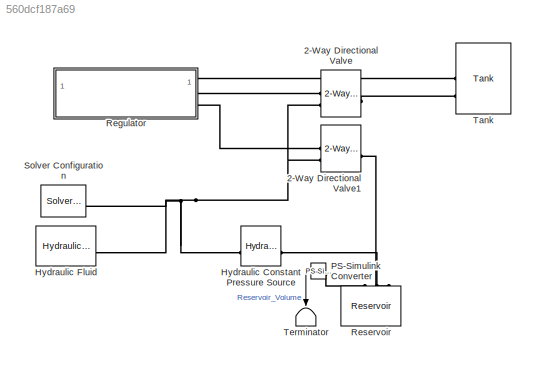
MODEL slx_560dcf187a69
KIND model
CONFIG AbsTol = auto
CONFIG EnableMultiTasking = off
CONFIG FixedStep = auto
CONFIG MaxStep = auto
CONFIG MinStep = auto
CONFIG RelTol = 1e-4
CONFIG SampleTimeConstraint = Unconstrained
CONFIG SolverName = VariableStepAuto
CONFIG StartTime = 0.0
CONFIG StopTime = 80
BLOCK [Reference] 2-Way Directional Valve  REF=sh_lib/Valves/Directional Valves/2-Way Directional
Valve
  SourceBlock = sh_lib/Valves/Directional Valves/2-Way Directional\nValve
  SourceType = 2-Way Directional\nValve
BLOCK [Reference] 2-Way Directional Valve1  REF=sh_lib/Valves/Directional Valves/2-Way Directional
Valve
  SourceBlock = sh_lib/Valves/Directional Valves/2-Way Directional\nValve
  SourceType = 2-Way Directional\nValve
BLOCK [Reference] Hydraulic Constant Pressure Source  REF=fl_lib/Hydraulic/Hydraulic Sources/Hydraulic Constant
Pressure Source
  NameLocation = top
  SourceBlock = fl_lib/Hydraulic/Hydraulic Sources/Hydraulic Constant\nPressure Source
  SourceType = Hydraulic Constant\nPressure Source
BLOCK [Reference] Hydraulic Fluid  REF=sh_lib/Hydraulic Utilities/Hydraulic Fluid
  SourceBlock = sh_lib/Hydraulic Utilities/Hydraulic Fluid
  SourceType = Hydraulic Fluid
BLOCK [Reference] PS-Simulink Converter  REF=nesl_utility/PS-Simulink
Converter
  NameLocation = top
  SourceBlock = nesl_utility/PS-Simulink\nConverter
  SourceType = PS-Simulink\nConverter
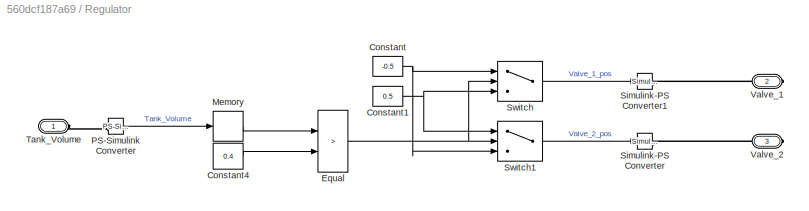
BLOCK [SubSystem] Regulator
BLOCK [Constant] Regulator/Constant
  Value = -0.5
BLOCK [Constant] Regulator/Constant1
  Value = 0.5
BLOCK [Constant] Regulator/Constant4
  Value = 0.4
BLOCK [RelationalOperator] Regulator/Equal
  InputSameDT = off
  Operator = >
  OutDataTypeStr = boolean
  RndMeth = Simplest
BLOCK [Memory] Regulator/Memory
BLOCK [Reference] Regulator/PS-Simulink Converter  REF=nesl_utility/PS-Simulink
Converter
  SourceBlock = nesl_utility/PS-Simulink\nConverter
  SourceType = PS-Simulink\nConverter
BLOCK [Reference] Regulator/Simulink-PS Converter  REF=nesl_utility/Simulink-PS
Converter
  SourceBlock = nesl_utility/Simulink-PS\nConverter
  SourceType = Simulink-PS\nConverter
BLOCK [Reference] Regulator/Simulink-PS Converter1  REF=nesl_utility/Simulink-PS
Converter
  SourceBlock = nesl_utility/Simulink-PS\nConverter
  SourceType = Simulink-PS\nConverter
BLOCK [Switch] Regulator/Switch
  Criteria = u2 > Threshold
  InputSameDT = off
  SaturateOnIntegerOverflow = off
BLOCK [Switch] Regulator/Switch1
  Criteria = u2 > Threshold
  InputSameDT = off
  SaturateOnIntegerOverflow = off
BLOCK [PMIOPort] Regulator/Tank_Volume
  NameLocation = top
  Side = Left
BLOCK [PMIOPort] Regulator/Valve_1
  Port = 2
  Side = Right
BLOCK [PMIOPort] Regulator/Valve_2
  Port = 3
  Side = Right
BLOCK [Reference] Reservoir  REF=sh_lib/Hydraulic Utilities/Reservoir
  NameLocation = right
  SourceBlock = sh_lib/Hydraulic Utilities/Reservoir
  SourceType = Reservoir
BLOCK [Reference] Solver Configuration  REF=nesl_utility/Solver
Configuration
  SourceBlock = nesl_utility/Solver\nConfiguration
  SourceType = Solver\nConfiguration
BLOCK [Reference] Tank  REF=sh_lib/Low-Pressure Blocks/Tank
  SourceBlock = sh_lib/Low-Pressure Blocks/Tank
  SourceType = Tank
BLOCK [Terminator] Terminator
  NameLocation = left
LINE PS-Simulink Converter:1 -> Terminator:1
NET Regulator/Constant1:1 -> Regulator/Switch1:1, Regulator/Switch:3
LINE Regulator/Constant4:1 -> Regulator/Equal:2
NET Regulator/Constant:1 -> Regulator/Switch1:3, Regulator/Switch:1
NET Regulator/Equal:1 -> Regulator/Switch1:2, Regulator/Switch:2
LINE Regulator/Memory:1 -> Regulator/Equal:1
LINE Regulator/PS-Simulink Converter:1 -> Regulator/Memory:1
LINE Regulator/Switch1:1 -> Regulator/Simulink-PS Converter:1
LINE Regulator/Switch:1 -> Regulator/Simulink-PS Converter1:1
PLINE 2-Way Directional Valve1:LConn1 -- Regulator:RConn2
PNET net1: 2-Way Directional Valve1:LConn2 -- 2-Way Directional Valve:LConn2 -- Hydraulic Constant Pressure Source:LConn1 -- Hydraulic Fluid:RConn1 -- Solver Configuration:RConn1
PLINE 2-Way Directional Valve1:RConn1 -- Reservoir:LConn3
PLINE 2-Way Directional Valve:LConn1 -- Regulator:RConn1
PLINE 2-Way Directional Valve:RConn1 -- Tank:RConn2
PLINE Hydraulic Constant Pressure Source:RConn1 -- Reservoir:LConn2
PLINE PS-Simulink Converter:LConn1 -- Reservoir:LConn1
PLINE Regulator/PS-Simulink Converter:LConn1 -- Regulator/Tank_Volume:RConn1
PLINE Regulator/Simulink-PS Converter1:RConn1 -- Regulator/Valve_1:RConn1
PLINE Regulator/Simulink-PS Converter:RConn1 -- Regulator/Valve_2:RConn1
PLINE Regulator:LConn1 -- Tank:RConn1
note: NET lines group one-source signal fan-out (src -> all destinations, sorted); 1:1 wires keep LINE; PNET lines group multi-terminal physical nets as a canonical sorted terminal list (undirected conserving connections); 2-terminal nets keep the pairwise PLINE form
